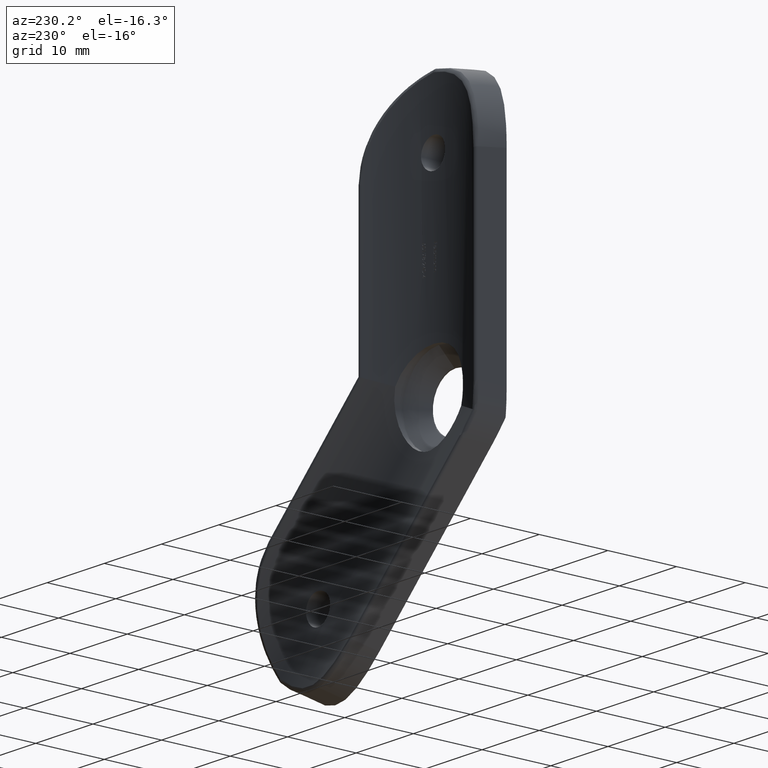
[diagram: clean part render]
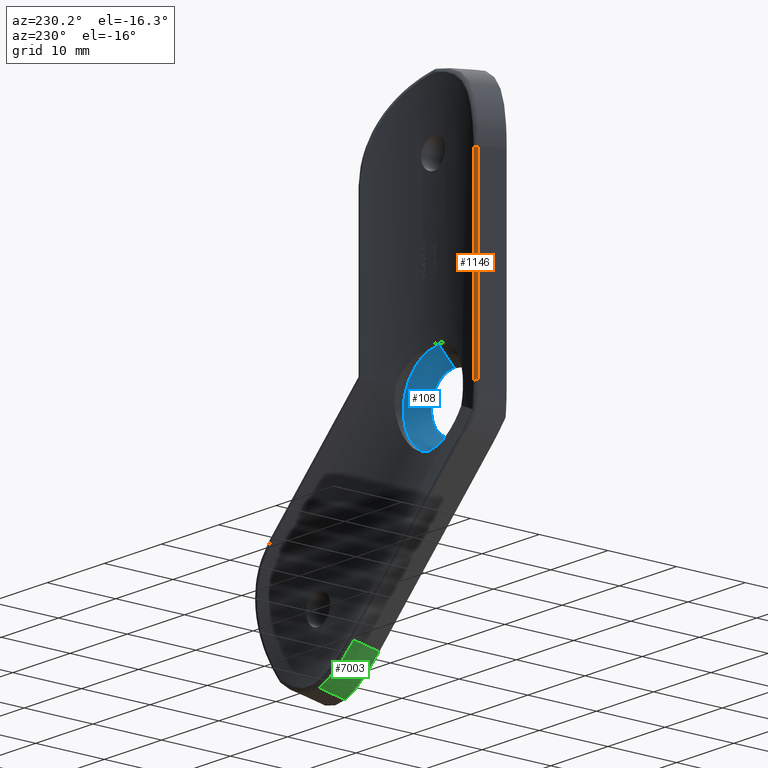
[diagram: same view with three faces highlighted in distinct colors, each labeled with its STEP entity id]
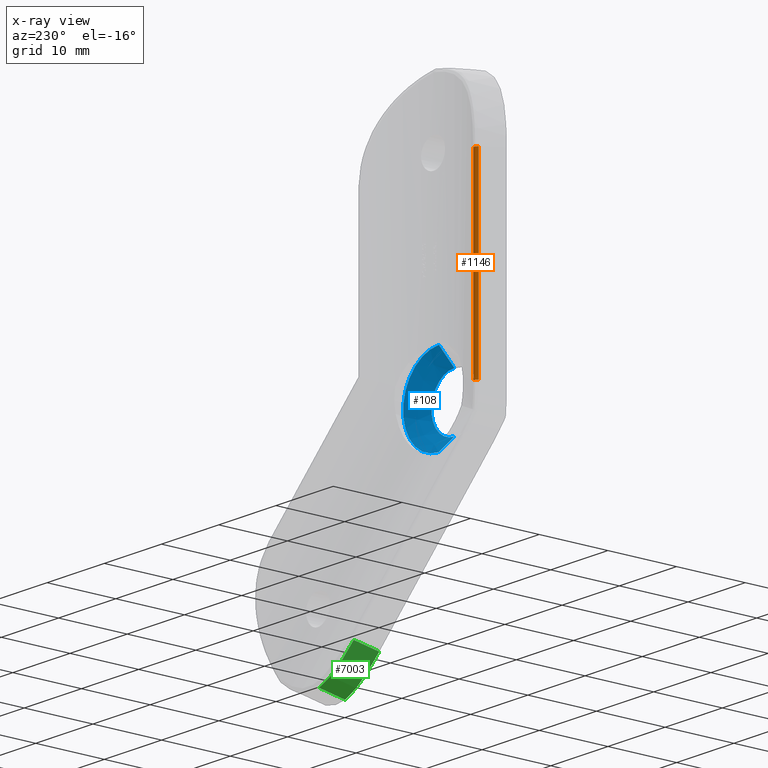
[diagram: x-ray of the same camera — body ghosted, the three highlighted faces saturated]
A machine part, auxiliary view with three faces highlighted in distinct colors.
The next image is the same camera in x-ray (body ghosted, the three faces saturated) — at least one of them is partly hidden behind the body in this view.
Their STEP definitions:

[orange] entity #1146 — the highlighted cylindrical surface (edge-blend (fillet) strip) has radius 0.5 mm, axis along (0, -0, 1).
#1146 = ADVANCED_FACE ( 'NONE', ( #9483 ), #2995, .T. ) ;
#2184 = AXIS2_PLACEMENT_3D ( 'NONE', #10666, #11745, #7707 ) ;
#2917 = DIRECTION ( 'NONE',  ( 1.000000000000000000, 0.0000000000000000000, 0.0000000000000000000 ) ) ;
#2995 = CYLINDRICAL_SURFACE ( 'NONE', #4866, 0.5000000000000004400 ) ;
#3000 = VECTOR ( 'NONE', #3051, 1000.000000000000000 ) ;
#3010 = CARTESIAN_POINT ( 'NONE',  ( -10.01694938544378000, 5.650305846339864300, 26.50000000000000400 ) ) ;
#3051 = DIRECTION ( 'NONE',  ( -1.224646799147353500E-016, -5.940217659796781100E-033, -1.000000000000000000 ) ) ;
#3152 = LINE ( 'NONE', #11336, #3000 ) ;
#3341 = ORIENTED_EDGE ( 'NONE', *, *, #8029, .F. ) ;
#3371 = EDGE_CURVE ( 'NONE', #8450, #5602, #8566, .T. ) ;
#3438 = ORIENTED_EDGE ( 'NONE', *, *, #5175, .F. ) ;
#3586 = ORIENTED_EDGE ( 'NONE', *, *, #6690, .F. ) ;
#4714 = CARTESIAN_POINT ( 'NONE',  ( -9.786144100064889900, 6.093847186285950500, 26.50000000000000400 ) ) ;
#4866 = AXIS2_PLACEMENT_3D ( 'NONE', #6740, #8888, #12863 ) ;
#5175 = EDGE_CURVE ( 'NONE', #11449, #5602, #3152, .T. ) ;
#5590 = EDGE_LOOP ( 'NONE', ( #10484, #3438, #3341, #3586 ) ) ;
#5602 = VERTEX_POINT ( 'NONE', #9631 ) ;
#6110 = CARTESIAN_POINT ( 'NONE',  ( -9.786144100064893400, 6.093847186285947800, -0.7012408104921961100 ) ) ;
#6690 = EDGE_CURVE ( 'NONE', #8450, #11192, #11120, .T. ) ;
#6740 = CARTESIAN_POINT ( 'NONE',  ( -10.01694938544378700, 5.650305846339864300, -24.81928916848295000 ) ) ;
#7433 = CARTESIAN_POINT ( 'NONE',  ( -9.786144100064897000, 6.093847186285947800, -24.81928916848295000 ) ) ;
#7707 = DIRECTION ( 'NONE',  ( 1.000000000000000000, 0.0000000000000000000, 0.0000000000000000000 ) ) ;
#8029 = EDGE_CURVE ( 'NONE', #11192, #11449, #10598, .T. ) ;
#8450 = VERTEX_POINT ( 'NONE', #6110 ) ;
#8461 = DIRECTION ( 'NONE',  ( 1.224646799147353500E-016, -0.0000000000000000000, 1.000000000000000000 ) ) ;
#8566 = CIRCLE ( 'NONE', #2184, 0.5000000000000004400 ) ;
#8888 = DIRECTION ( 'NONE',  ( 1.224646799147353500E-016, -0.0000000000000000000, 1.000000000000000000 ) ) ;
#9483 = FACE_OUTER_BOUND ( 'NONE', #5590, .T. ) ;
#9631 = CARTESIAN_POINT ( 'NONE',  ( -10.45505487545768000, 5.891269701761547000, -0.7012408104921964400 ) ) ;
#10484 = ORIENTED_EDGE ( 'NONE', *, *, #3371, .T. ) ;
#10598 = CIRCLE ( 'NONE', #13229, 0.5000000000000004400 ) ;
#10666 = CARTESIAN_POINT ( 'NONE',  ( -10.01694938544378400, 5.650305846339861700, -0.7012408104921961100 ) ) ;
#11120 = LINE ( 'NONE', #7433, #12082 ) ;
#11192 = VERTEX_POINT ( 'NONE', #4714 ) ;
#11336 = CARTESIAN_POINT ( 'NONE',  ( -10.45505487545768200, 5.891269701761551400, -24.81928916848295000 ) ) ;
#11449 = VERTEX_POINT ( 'NONE', #11698 ) ;
#11698 = CARTESIAN_POINT ( 'NONE',  ( -10.45505487545767500, 5.891269701761550500, 26.50000000000000400 ) ) ;
#11745 = DIRECTION ( 'NONE',  ( 0.0000000000000000000, -0.0000000000000000000, 1.000000000000000000 ) ) ;
#12082 = VECTOR ( 'NONE', #8461, 1000.000000000000000 ) ;
#12293 = DIRECTION ( 'NONE',  ( 0.0000000000000000000, -0.0000000000000000000, 1.000000000000000000 ) ) ;
#12863 = DIRECTION ( 'NONE',  ( 1.000000000000000000, 0.0000000000000000000, 0.0000000000000000000 ) ) ;
#13229 = AXIS2_PLACEMENT_3D ( 'NONE', #3010, #12293, #2917 ) ;

[blue] entity #108 — the highlighted conical surface has half-angle 45 deg.
#18 = CARTESIAN_POINT ( 'NONE',  ( 0.0000000000000000000, 2.949999999999999300, 0.0000000000000000000 ) ) ;
#108 = ADVANCED_FACE ( 'NONE', ( #7248 ), #1690, .F. ) ;
#247 = CARTESIAN_POINT ( 'NONE',  ( 0.0000000000000000000, 2.949999999999999300, 6.250000000000000000 ) ) ;
#830 = AXIS2_PLACEMENT_3D ( 'NONE', #18, #6140, #932 ) ;
#859 = CARTESIAN_POINT ( 'NONE',  ( 0.0000000000000000000, 0.6999999999999762000, 0.0000000000000000000 ) ) ;
#932 = DIRECTION ( 'NONE',  ( 0.0000000000000000000, 0.0000000000000000000, -1.000000000000000000 ) ) ;
#1039 = ORIENTED_EDGE ( 'NONE', *, *, #1785, .T. ) ;
#1400 = DIRECTION ( 'NONE',  ( 0.0000000000000000000, 0.7071067811865511300, 0.7071067811865440200 ) ) ;
#1690 = CONICAL_SURFACE ( 'NONE', #3748, 6.250000000000000000, 0.7853981633974431700 ) ;
#1785 = EDGE_CURVE ( 'NONE', #10726, #8534, #7395, .T. ) ;
#2854 = DIRECTION ( 'NONE',  ( 0.0000000000000000000, 0.0000000000000000000, -1.000000000000000000 ) ) ;
#2996 = CARTESIAN_POINT ( 'NONE',  ( 0.0000000000000000000, 2.949999999999999300, 0.0000000000000000000 ) ) ;
#3433 = CARTESIAN_POINT ( 'NONE',  ( 0.0000000000000000000, 0.6999999999999762000, 4.000000000000000000 ) ) ;
#3748 = AXIS2_PLACEMENT_3D ( 'NONE', #2996, #4935, #10282 ) ;
#4590 = VECTOR ( 'NONE', #1400, 999.9999999999998900 ) ;
#4682 = LINE ( 'NONE', #12705, #7995 ) ;
#4935 = DIRECTION ( 'NONE',  ( 0.0000000000000000000, 1.000000000000000000, 0.0000000000000000000 ) ) ;
#5824 = ORIENTED_EDGE ( 'NONE', *, *, #10151, .T. ) ;
#6140 = DIRECTION ( 'NONE',  ( -0.0000000000000000000, -1.000000000000000000, -0.0000000000000000000 ) ) ;
#6446 = CARTESIAN_POINT ( 'NONE',  ( 7.654042494670957600E-016, 2.949999999999999300, 6.250000000000000000 ) ) ;
#6680 = DIRECTION ( 'NONE',  ( 8.659560562354889700E-017, 0.7071067811865511300, -0.7071067811865440200 ) ) ;
#7004 = CARTESIAN_POINT ( 'NONE',  ( 0.0000000000000000000, 2.949999999999999300, -6.250000000000000000 ) ) ;
#7018 = DIRECTION ( 'NONE',  ( -0.0000000000000000000, -1.000000000000000000, -0.0000000000000000000 ) ) ;
#7248 = FACE_OUTER_BOUND ( 'NONE', #10423, .T. ) ;
#7395 = LINE ( 'NONE', #247, #4590 ) ;
#7995 = VECTOR ( 'NONE', #6680, 999.9999999999998900 ) ;
#8534 = VERTEX_POINT ( 'NONE', #6446 ) ;
#8939 = AXIS2_PLACEMENT_3D ( 'NONE', #859, #7018, #2854 ) ;
#9276 = CIRCLE ( 'NONE', #8939, 4.000000000000000000 ) ;
#10151 = EDGE_CURVE ( 'NONE', #11922, #10726, #9276, .T. ) ;
#10282 = DIRECTION ( 'NONE',  ( 0.0000000000000000000, 0.0000000000000000000, 1.000000000000000000 ) ) ;
#10423 = EDGE_LOOP ( 'NONE', ( #10427, #5824, #1039, #11796 ) ) ;
#10427 = ORIENTED_EDGE ( 'NONE', *, *, #12749, .F. ) ;
#10726 = VERTEX_POINT ( 'NONE', #3433 ) ;
#11489 = CIRCLE ( 'NONE', #830, 6.250000000000000000 ) ;
#11796 = ORIENTED_EDGE ( 'NONE', *, *, #13325, .F. ) ;
#11922 = VERTEX_POINT ( 'NONE', #12586 ) ;
#12586 = CARTESIAN_POINT ( 'NONE',  ( 6.276314845630185200E-016, 0.6999999999999762000, -4.000000000000000000 ) ) ;
#12705 = CARTESIAN_POINT ( 'NONE',  ( 7.654042494670957600E-016, 2.949999999999999300, -6.250000000000000000 ) ) ;
#12749 = EDGE_CURVE ( 'NONE', #11922, #13308, #4682, .T. ) ;
#13308 = VERTEX_POINT ( 'NONE', #7004 ) ;
#13325 = EDGE_CURVE ( 'NONE', #13308, #8534, #11489, .T. ) ;

[green] entity #7003 — the highlighted cylindrical surface (partial cylindrical patch) has radius 12 mm, axis along (-0.3408, -0.8762, -0.3408).
#178 = LINE ( 'NONE', #6258, #2978 ) ;
#282 = CARTESIAN_POINT ( 'NONE',  ( 15.01675392112572300, 2.467327259846780600, -30.30865518026881100 ) ) ;
#780 = CARTESIAN_POINT ( 'NONE',  ( 11.34548950132994500, 5.891269701761546100, -26.13116990155709400 ) ) ;
#1072 = B_SPLINE_CURVE_WITH_KNOTS ( 'NONE', 3,
 ( #2036, #6563, #8640, #5678, #5535, #10804, #5585, #12778, #282, #6701, #11697, #6614, #4572, #9608 ),
 .UNSPECIFIED., .F., .F.,
 ( 4, 2, 2, 2, 2, 2, 4 ),
 ( 0.0000000000000000000, 0.002148661115913953000, 0.003222991673870932300, 0.004297322231827912000, 0.006445983347741875000, 0.007520313905698863000, 0.008594644463655850100 ),
 .UNSPECIFIED. ) ;
#1287 = CARTESIAN_POINT ( 'NONE',  ( 18.86710263860946000, 4.680744883182431000, -29.79350227623375600 ) ) ;
#1738 = CARTESIAN_POINT ( 'NONE',  ( 11.34548950132994500, 5.891269701761546100, -26.13116990155709400 ) ) ;
#1897 = CARTESIAN_POINT ( 'NONE',  ( 11.85936864411183000, 5.891269701761545200, -26.64504904433897500 ) ) ;
#2036 = CARTESIAN_POINT ( 'NONE',  ( 10.25304832720497900, 3.082346597307949100, -27.22361107568205800 ) ) ;
#2251 = DIRECTION ( 'NONE',  ( -0.3407743523790587300, -0.8762109800277928500, -0.3407743523790597900 ) ) ;
#2316 = EDGE_CURVE ( 'NONE', #8864, #3150, #178, .T. ) ;
#2337 = VERTEX_POINT ( 'NONE', #1287 ) ;
#2554 = CARTESIAN_POINT ( 'NONE',  ( 10.25304832720497900, 3.082346597307949100, -27.22361107568205800 ) ) ;
#2601 = DIRECTION ( 'NONE',  ( -0.3407743523790587300, -0.8762109800277929600, -0.3407743523790597900 ) ) ;
#2978 = VECTOR ( 'NONE', #2251, 1000.000000000000200 ) ;
#3150 = VERTEX_POINT ( 'NONE', #2554 ) ;
#3264 = CARTESIAN_POINT ( 'NONE',  ( 12.40635917233265000, 5.860759462862901600, -27.11010301152271400 ) ) ;
#3362 = EDGE_CURVE ( 'NONE', #3150, #4209, #1072, .T. ) ;
#3649 = DIRECTION ( 'NONE',  ( -0.3407743523790587900, -0.8762109800277930700, -0.3407743523790598400 ) ) ;
#3696 = DIRECTION ( 'NONE',  ( 0.0000000000000000000, 0.3624699488056323800, -0.9319954593305926900 ) ) ;
#4202 = CARTESIAN_POINT ( 'NONE',  ( 14.50154350401540500, 5.601578905348309200, -28.47610426669277200 ) ) ;
#4209 = VERTEX_POINT ( 'NONE', #9310 ) ;
#4281 = AXIS2_PLACEMENT_3D ( 'NONE', #6632, #3649, #3696 ) ;
#4341 = CARTESIAN_POINT ( 'NONE',  ( 16.12134799147545300, 5.303434265402760400, -29.20603408136630800 ) ) ;
#4572 = CARTESIAN_POINT ( 'NONE',  ( 17.40091741868493700, 1.894307273978760500, -30.87719843316951400 ) ) ;
#4720 = CARTESIAN_POINT ( 'NONE',  ( 19.68252085924049100, 6.777376842818087600, -28.97808405561363200 ) ) ;
#5152 = CARTESIAN_POINT ( 'NONE',  ( 15.46421958299639400, 5.435550970266318900, -28.95042003915541800 ) ) ;
#5160 = EDGE_LOOP ( 'NONE', ( #11762, #11116, #10809, #6597 ) ) ;
#5535 = CARTESIAN_POINT ( 'NONE',  ( 12.47711482285873800, 2.921560121715844000, -29.02808888413324000 ) ) ;
#5585 = CARTESIAN_POINT ( 'NONE',  ( 13.40284514861136100, 2.780059496920713500, -29.57284808784092400 ) ) ;
#5678 = CARTESIAN_POINT ( 'NONE',  ( 12.18010080935373000, 2.959289810348384500, -28.83058673341490100 ) ) ;
#6215 = CARTESIAN_POINT ( 'NONE',  ( 18.86710263860946000, 4.680744883182431000, -29.79350227623375600 ) ) ;
#6258 = CARTESIAN_POINT ( 'NONE',  ( 10.25304832720497700, 3.082346597307946900, -27.22361107568206200 ) ) ;
#6264 = CARTESIAN_POINT ( 'NONE',  ( 17.47370100794152500, 5.006291796961892100, -29.57971748010828300 ) ) ;
#6312 = CARTESIAN_POINT ( 'NONE',  ( 17.13241761031101600, 5.083323645628364100, -29.49782374702316900 ) ) ;
#6563 = CARTESIAN_POINT ( 'NONE',  ( 10.76675479049620400, 3.082346597307949600, -27.73731753897327900 ) ) ;
#6597 = ORIENTED_EDGE ( 'NONE', *, *, #2316, .F. ) ;
#6614 = CARTESIAN_POINT ( 'NONE',  ( 17.05090110591389400, 1.982960350769714700, -30.82512745738631600 ) ) ;
#6632 = CARTESIAN_POINT ( 'NONE',  ( 19.68252085924049100, 2.427737457150498800, -17.79413854364652200 ) ) ;
#6701 = CARTESIAN_POINT ( 'NONE',  ( 16.02310193740984400, 2.234599377794527900, -30.60552949365391500 ) ) ;
#6713 = B_SPLINE_CURVE_WITH_KNOTS ( 'NONE', 3,
 ( #780, #1897, #3264, #8412, #10561, #7472, #4202, #5152, #4341, #6312, #6264, #11460, #7285, #6215 ),
 .UNSPECIFIED., .F., .F.,
 ( 4, 2, 2, 2, 2, 2, 4 ),
 ( 0.0000000000000000000, 0.002149467671603496700, 0.003224201507405240100, 0.004298935343206983900, 0.006448403014810479400, 0.007523136850612226200, 0.008597870686413974800 ),
 .UNSPECIFIED. ) ;
#7003 = ADVANCED_FACE ( 'NONE', ( #8226 ), #7246, .T. ) ;
#7035 = EDGE_CURVE ( 'NONE', #2337, #4209, #9641, .T. ) ;
#7246 = CYLINDRICAL_SURFACE ( 'NONE', #4281, 12.00000000000000000 ) ;
#7285 = CARTESIAN_POINT ( 'NONE',  ( 18.51748261554203600, 4.763724503538209200, -29.76122999589005500 ) ) ;
#7472 = CARTESIAN_POINT ( 'NONE',  ( 14.18533538279657700, 5.651354205493857900, -28.30294894406989700 ) ) ;
#8226 = FACE_OUTER_BOUND ( 'NONE', #5160, .T. ) ;
#8412 = CARTESIAN_POINT ( 'NONE',  ( 13.27523355990863500, 5.773176607751489400, -27.73668387878508700 ) ) ;
#8640 = CARTESIAN_POINT ( 'NONE',  ( 11.31305269959234000, 3.050602696656763400, -28.20270959370995500 ) ) ;
#8864 = VERTEX_POINT ( 'NONE', #1738 ) ;
#9310 = CARTESIAN_POINT ( 'NONE',  ( 17.74870572930680600, 1.805083481060324000, -30.91189918554734500 ) ) ;
#9584 = EDGE_CURVE ( 'NONE', #8864, #2337, #6713, .T. ) ;
#9608 = CARTESIAN_POINT ( 'NONE',  ( 17.74870572930680600, 1.805083481060324000, -30.91189918554734500 ) ) ;
#9641 = LINE ( 'NONE', #4720, #11420 ) ;
#10561 = CARTESIAN_POINT ( 'NONE',  ( 13.57298905790988300, 5.737007584202224600, -27.93362066801541800 ) ) ;
#10804 = CARTESIAN_POINT ( 'NONE',  ( 13.08769312505716300, 2.832094770941442800, -29.39883958832772500 ) ) ;
#10809 = ORIENTED_EDGE ( 'NONE', *, *, #3362, .F. ) ;
#11116 = ORIENTED_EDGE ( 'NONE', *, *, #7035, .T. ) ;
#11420 = VECTOR ( 'NONE', #2601, 1000.000000000000100 ) ;
#11460 = CARTESIAN_POINT ( 'NONE',  ( 18.16558438222392300, 4.846651137601629200, -29.71143829566638000 ) ) ;
#11697 = CARTESIAN_POINT ( 'NONE',  ( 16.36268542702558900, 2.152922136895163000, -30.68929080059804100 ) ) ;
#11762 = ORIENTED_EDGE ( 'NONE', *, *, #9584, .T. ) ;
#12778 = CARTESIAN_POINT ( 'NONE',  ( 14.36227239182932700, 2.606114071614964400, -30.05033866913802100 ) ) ;